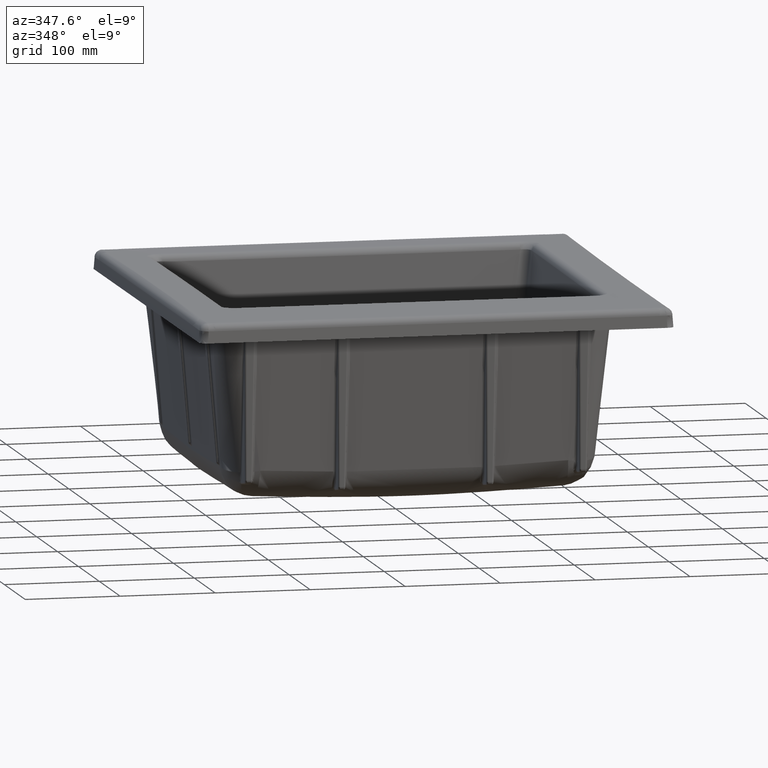
[diagram: clean part render]
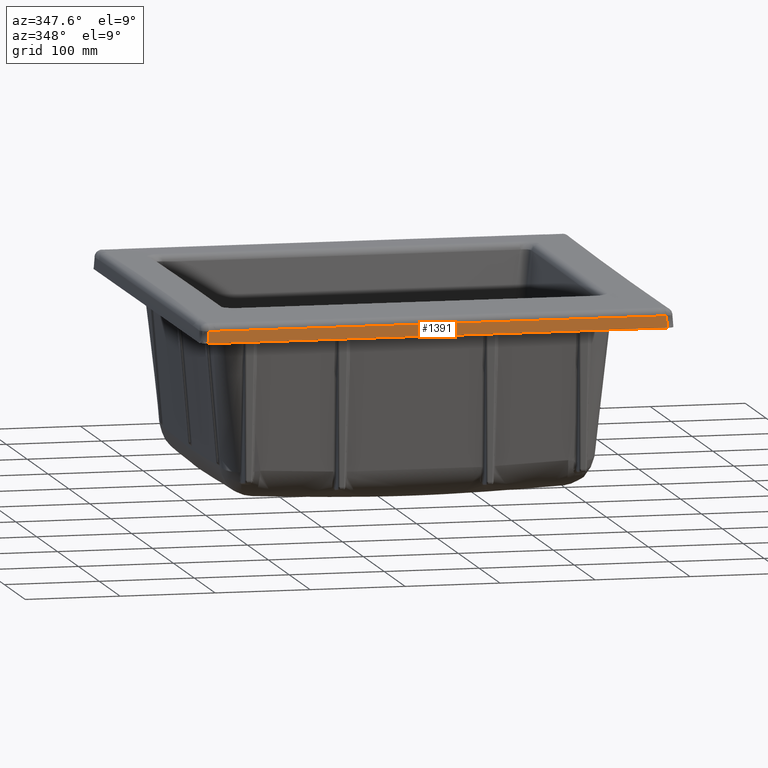
[diagram: same view with one face highlighted and labeled with its STEP entity id]
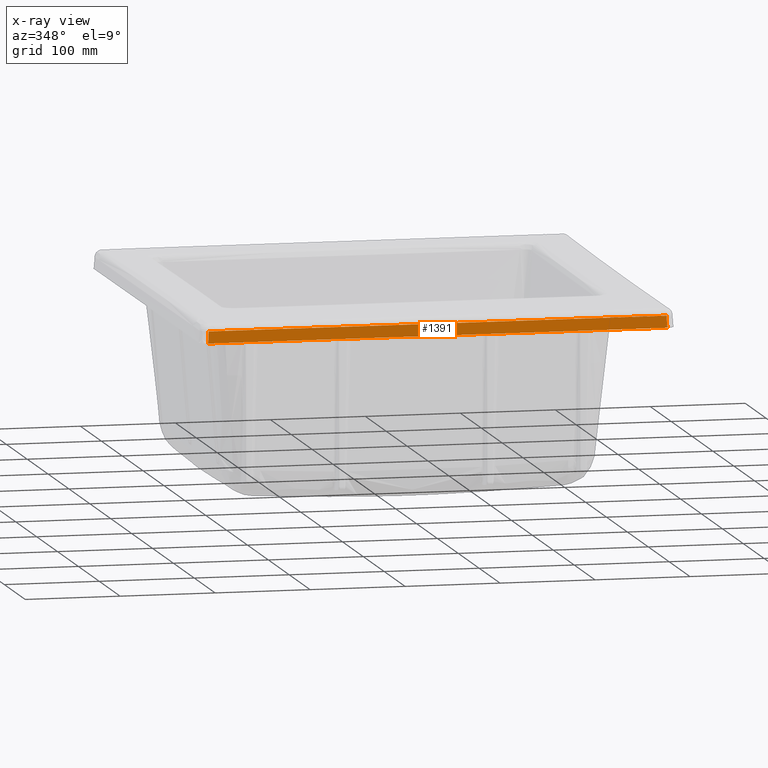
[diagram: x-ray of the same camera — body ghosted, the highlighted face saturated]
A machine part, auxiliary view. The second image highlights one B-rep face of the part: STEP entity #1391.
The next image is the same camera in x-ray: the body ghosted, the highlighted face saturated — about 0% of this face is hidden behind the body in this view.
In plain terms, the highlighted planar face has unit normal (0, 0.9976, -0.0698).
Its self-contained STEP definition (entity closure, byte-faithful):
#133=PLANE('',#4859);
#186=LINE('',#7886,#311);
#311=VECTOR('',#5232,1.);
#658=FACE_OUTER_BOUND('',#1738,.T.);
#967=B_SPLINE_CURVE_WITH_KNOTS('',3,(#7890,#7891,#7892,#7893),
 .UNSPECIFIED.,.F.,.F.,(4,4),(0.,1.),.UNSPECIFIED.);
#969=B_SPLINE_CURVE_WITH_KNOTS('',3,(#7913,#7914,#7915,#7916),
 .UNSPECIFIED.,.F.,.F.,(4,4),(0.,1.),.UNSPECIFIED.);
#970=B_SPLINE_CURVE_WITH_KNOTS('',3,(#7929,#7930,#7931,#7932),
 .UNSPECIFIED.,.F.,.F.,(4,4),(0.,1.),.UNSPECIFIED.);
#972=B_SPLINE_CURVE_WITH_KNOTS('',3,(#7952,#7953,#7954,#7955),
 .UNSPECIFIED.,.F.,.F.,(4,4),(0.,1.),.UNSPECIFIED.);
#973=B_SPLINE_CURVE_WITH_KNOTS('',3,(#7968,#7969,#7970,#7971),
 .UNSPECIFIED.,.F.,.F.,(4,4),(0.,1.),.UNSPECIFIED.);
#1391=ADVANCED_FACE('',(#658),#133,.F.);
#1738=EDGE_LOOP('',(#2270,#2271,#2272,#2273,#2274,#2275));
#2270=ORIENTED_EDGE('',*,*,#4043,.T.);
#2271=ORIENTED_EDGE('',*,*,#4045,.T.);
#2272=ORIENTED_EDGE('',*,*,#4047,.T.);
#2273=ORIENTED_EDGE('',*,*,#4051,.F.);
#2274=ORIENTED_EDGE('',*,*,#4048,.T.);
#2275=ORIENTED_EDGE('',*,*,#4050,.T.);
#3534=VERTEX_POINT('',#7780);
#3541=VERTEX_POINT('',#7865);
#3542=VERTEX_POINT('',#7885);
#3543=VERTEX_POINT('',#7887);
#3544=VERTEX_POINT('',#7912);
#3545=VERTEX_POINT('',#7933);
#4043=EDGE_CURVE('',#3543,#3542,#186,.T.);
#4045=EDGE_CURVE('',#3542,#3534,#967,.T.);
#4047=EDGE_CURVE('',#3534,#3544,#969,.T.);
#4048=EDGE_CURVE('',#3545,#3541,#970,.T.);
#4050=EDGE_CURVE('',#3541,#3543,#972,.T.);
#4051=EDGE_CURVE('',#3545,#3544,#973,.T.);
#4859=AXIS2_PLACEMENT_3D('',#7972,#5237,#5238);
#5232=DIRECTION('',(-1.,0.,0.));
#5237=DIRECTION('',(0.,0.997564050259824,-0.0697564737441252));
#5238=DIRECTION('',(0.,-0.0697564737441252,-0.997564050259824));
#7780=CARTESIAN_POINT('',(-240.978354799249,-0.523648262855425,-7.48851904300239));
#7865=CARTESIAN_POINT('',(240.978354797305,-0.523648262789167,-7.48851904205489));
#7885=CARTESIAN_POINT('',(-234.08626680648,-0.525154187042617,-7.51005476221133));
#7886=CARTESIAN_POINT('',(-248.5,-0.525154187272618,-7.51005476550051));
#7887=CARTESIAN_POINT('',(234.086266806493,-0.525154186929428,-7.51005476059267));
#7890=CARTESIAN_POINT('',(-234.08626680648,-0.52515418727167,-7.51005476548696));
#7891=CARTESIAN_POINT('',(-236.38380544229,-0.52515418727167,-7.51005476548696));
#7892=CARTESIAN_POINT('',(-238.681168106047,-0.524652212519653,-7.50287619208906));
#7893=CARTESIAN_POINT('',(-240.978354797752,-0.523648263015617,-7.48851904529325));
#7912=CARTESIAN_POINT('',(-241.860708199293,-1.39853623886444,-19.9999999999176));
#7913=CARTESIAN_POINT('',(-240.978354797752,-0.523648263015617,-7.48851904529325));
#7914=CARTESIAN_POINT('',(-241.272472597874,-0.81527758830048,-11.6590126968622));
#7915=CARTESIAN_POINT('',(-241.566590397996,-1.10690691358534,-15.8295063484311));
#7916=CARTESIAN_POINT('',(-241.860708198118,-1.39853623887021,-20.));
#7929=CARTESIAN_POINT('',(241.860708198113,-1.39853623887021,-20.));
#7930=CARTESIAN_POINT('',(241.566590397991,-1.10690691358535,-15.8295063484312));
#7931=CARTESIAN_POINT('',(241.272472597869,-0.815277588300491,-11.6590126968623));
#7932=CARTESIAN_POINT('',(240.978354797746,-0.523648263015633,-7.48851904529348));
#7933=CARTESIAN_POINT('',(241.860708197995,-1.39853623887079,-20.0000000000083));
#7952=CARTESIAN_POINT('',(240.978354797746,-0.523648263015633,-7.48851904529348));
#7953=CARTESIAN_POINT('',(238.681168104618,-0.52465221252029,-7.50287619209817));
#7954=CARTESIAN_POINT('',(236.383805440867,-0.525154187272618,-7.51005476550051));
#7955=CARTESIAN_POINT('',(234.086266806493,-0.525154187272618,-7.51005476550051));
#7968=CARTESIAN_POINT('',(241.860708198113,-1.39853623887022,-20.));
#7969=CARTESIAN_POINT('',(80.620236066036,-1.39853623887019,-20.));
#7970=CARTESIAN_POINT('',(-80.620236066041,-1.39853623887021,-20.));
#7971=CARTESIAN_POINT('',(-241.860708198118,-1.3985362388702,-20.));
#7972=CARTESIAN_POINT('',(-248.5,0.,0.));